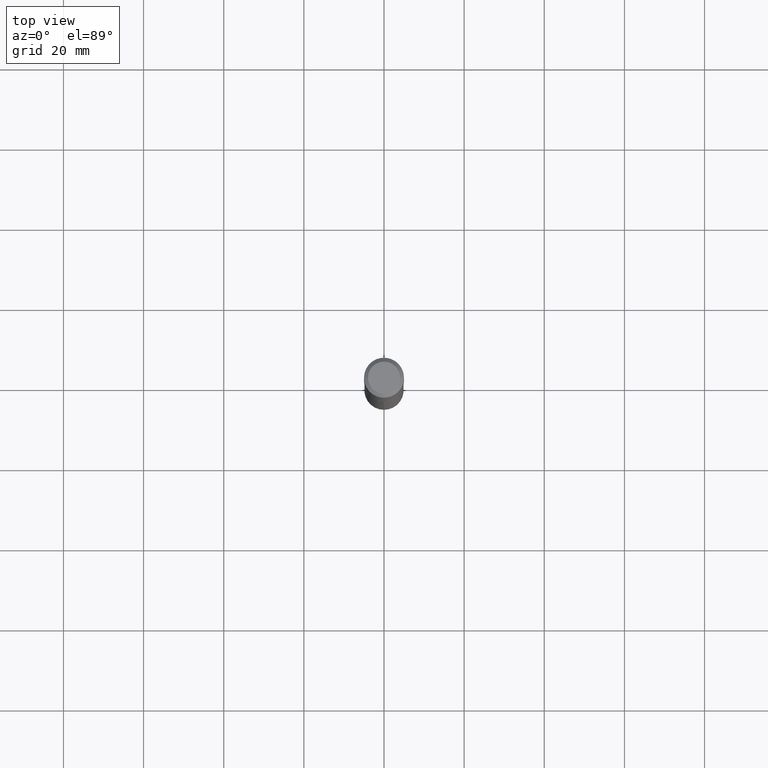
[diagram: clean part render]
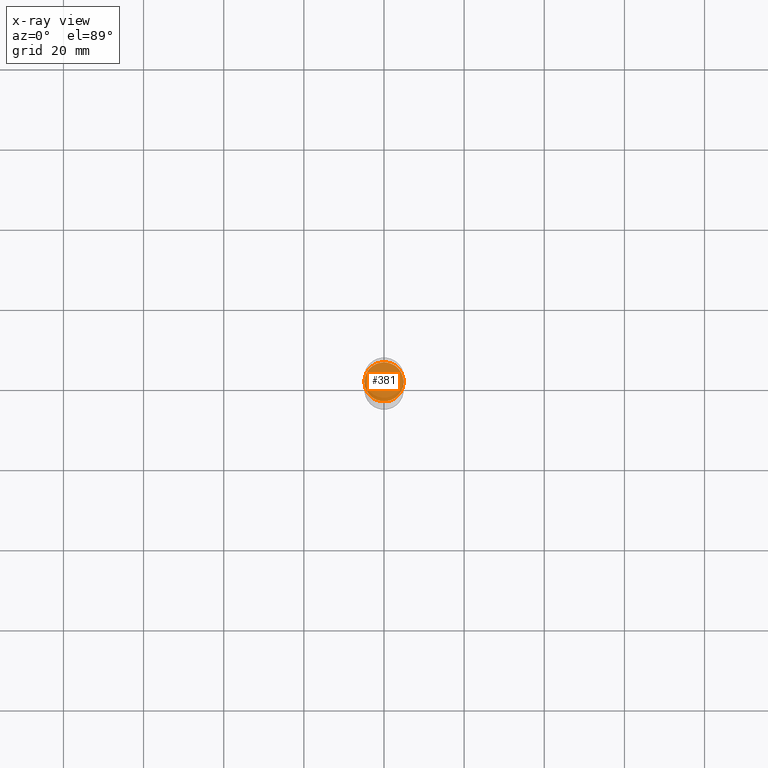
[diagram: x-ray — body ghosted, one internal face saturated and labeled with its STEP entity id]
A machine part, top view, then the same camera in x-ray: the body is ghosted and one INTERNAL B-rep face — a face not visible from any outside direction — is saturated and labeled: STEP entity #381.
In plain terms, the highlighted planar face has unit normal (-0, 0, 1).
Its self-contained STEP definition (entity closure, byte-faithful):
#5 = CARTESIAN_POINT ( 'NONE',  ( 5.939310089581840960E-29, -8.479760727648346701E-15, -2.428699999999999637 ) ) ;
#7 = EDGE_CURVE ( 'NONE', #178, #410, #399, .T. ) ;
#29 = CARTESIAN_POINT ( 'NONE',  ( -0.1923999999999999877, -7.110027276871802632E-15, -2.428699999999999637 ) ) ;
#46 = AXIS2_PLACEMENT_3D ( 'NONE', #179, #173, #473 ) ;
#99 = EDGE_CURVE ( 'NONE', #410, #178, #207, .T. ) ;
#119 = DIRECTION ( 'NONE',  ( -2.438088387897960049E-29, 3.491481338843145188E-15, 1.000000000000000000 ) ) ;
#120 = ORIENTED_EDGE ( 'NONE', *, *, #99, .F. ) ;
#154 = PLANE ( 'NONE',  #393 ) ;
#173 = DIRECTION ( 'NONE',  ( -2.445468806185136597E-29, 3.491481338843145583E-15, 1.000000000000000000 ) ) ;
#177 = DIRECTION ( 'NONE',  ( 1.000000000000000000, -6.982962677686265922E-15, 4.876176775795935793E-29 ) ) ;
#178 = VERTEX_POINT ( 'NONE', #452 ) ;
#179 = CARTESIAN_POINT ( 'NONE',  ( 5.939310089581840960E-29, -8.479760727648346701E-15, -2.428699999999999637 ) ) ;
#199 = EDGE_LOOP ( 'NONE', ( #255, #120 ) ) ;
#201 = DIRECTION ( 'NONE',  ( -2.445468806185136597E-29, 3.491481338843145583E-15, 1.000000000000000000 ) ) ;
#207 = CIRCLE ( 'NONE', #248, 0.1923999999999999877 ) ;
#248 = AXIS2_PLACEMENT_3D ( 'NONE', #5, #201, #461 ) ;
#255 = ORIENTED_EDGE ( 'NONE', *, *, #7, .F. ) ;
#258 = FACE_OUTER_BOUND ( 'NONE', #199, .T. ) ;
#306 = CARTESIAN_POINT ( 'NONE',  ( 5.939310089581840960E-29, -8.479760727648346701E-15, -2.428699999999999637 ) ) ;
#381 = ADVANCED_FACE ( 'NONE', ( #258 ), #154, .F. ) ;
#393 = AXIS2_PLACEMENT_3D ( 'NONE', #306, #119, #177 ) ;
#399 = CIRCLE ( 'NONE', #46, 0.1923999999999999877 ) ;
#410 = VERTEX_POINT ( 'NONE', #29 ) ;
#452 = CARTESIAN_POINT ( 'NONE',  ( 0.1923999999999999877, -9.823282746835183179E-15, -2.428699999999999637 ) ) ;
#461 = DIRECTION ( 'NONE',  ( 1.000000000000000000, -6.982962677686261977E-15, 0.000000000000000000 ) ) ;
#473 = DIRECTION ( 'NONE',  ( 1.000000000000000000, -6.982962677686261977E-15, 0.000000000000000000 ) ) ;